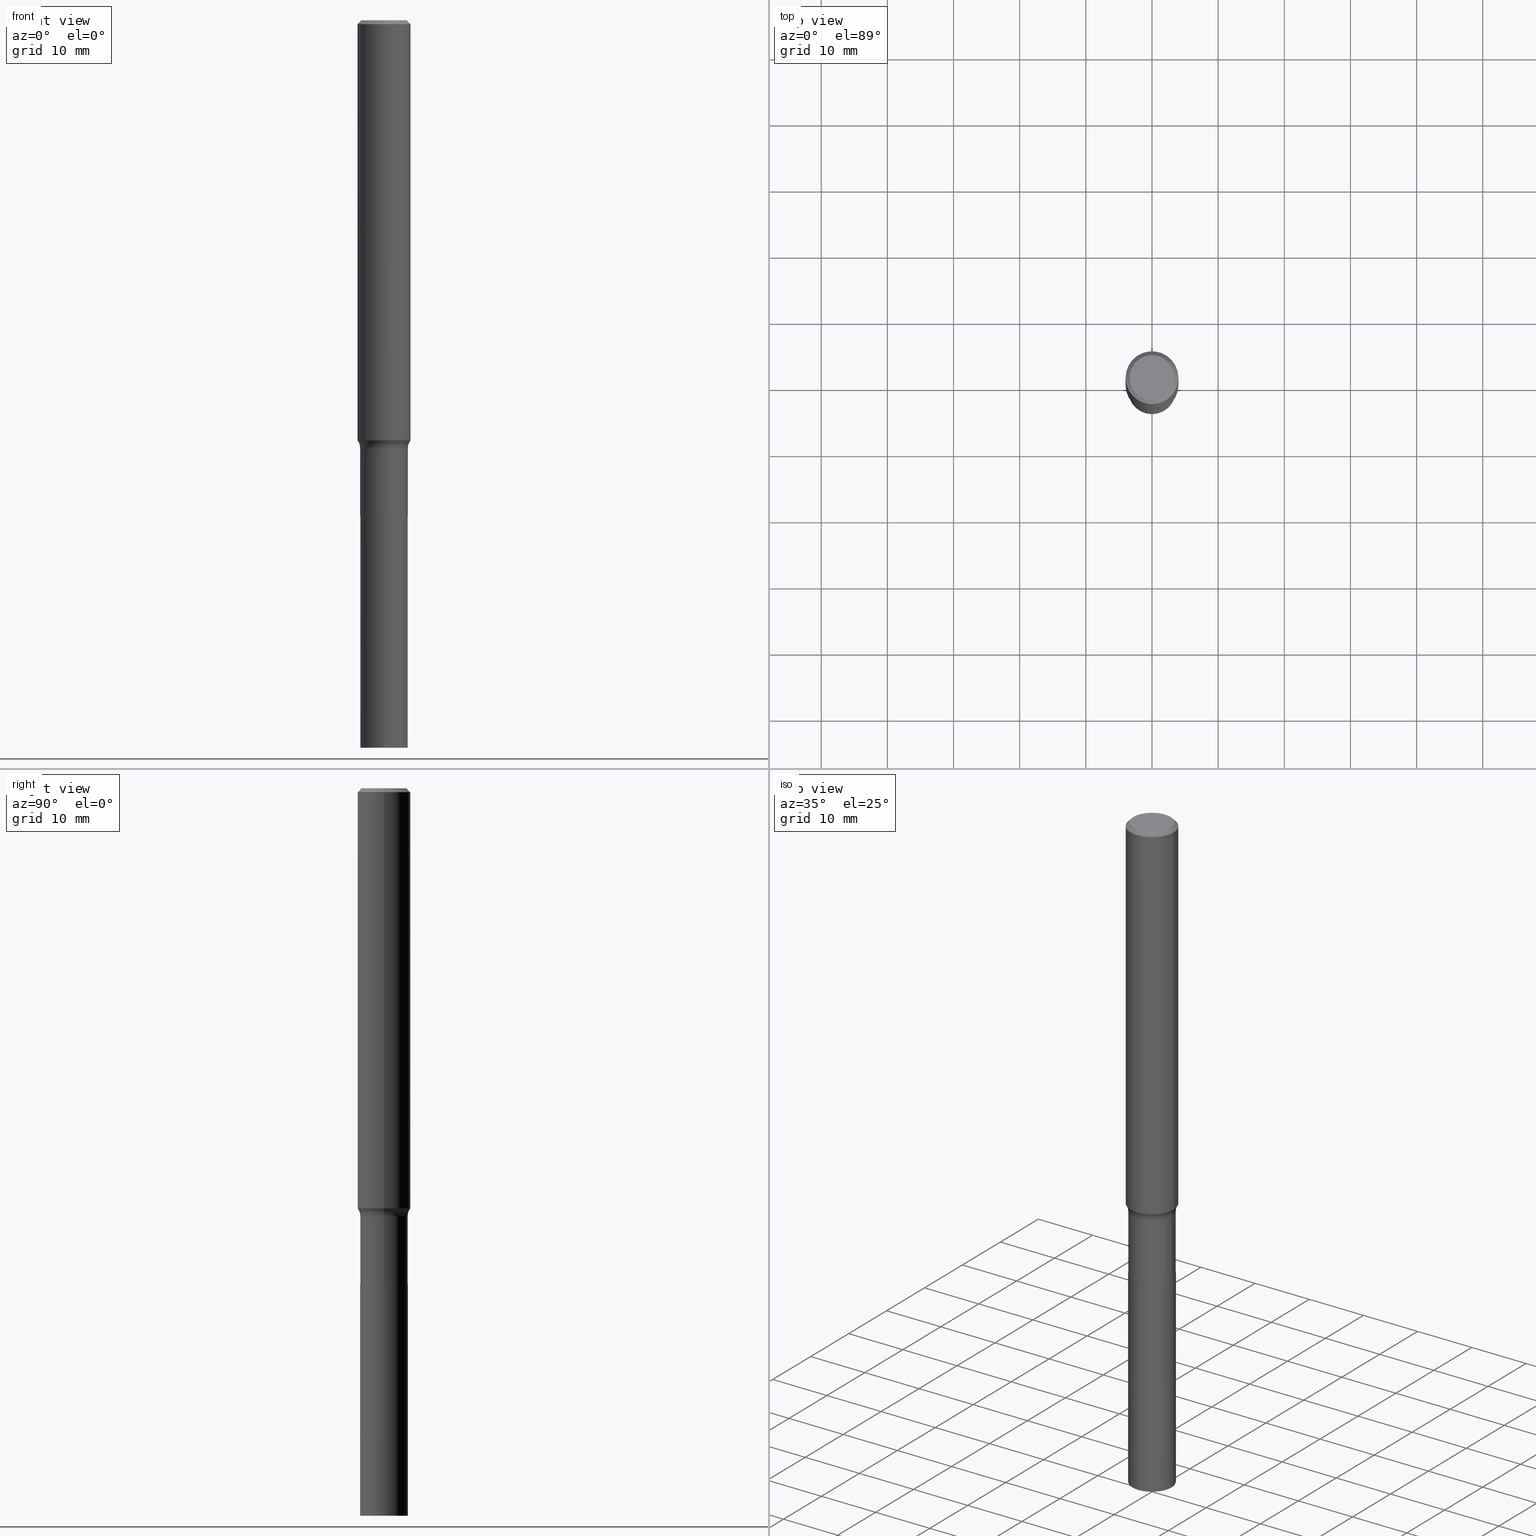
[diagram: canonical four-view strip — front | top / right | iso, engineering-drawing reading convention]
A machine part, canonical four-view strip (front | top / right | iso — engineering-drawing reading convention). The complete STEP part file that produces these views, byte-faithful:
ISO-10303-21;
HEADER;
FILE_DESCRIPTION (( 'STEP AP203' ),
    '1' );
FILE_NAME ('67859.STEP',
    '2024-04-19T16:44:54',
    ( '' ),
    ( '' ),
    'SwSTEP 2.0',
    'SolidWorks 2023',
    '' );
FILE_SCHEMA (( 'CONFIG_CONTROL_DESIGN' ));
ENDSEC;

DATA;
#1 = AXIS2_PLACEMENT_3D ( 'NONE', #135, #280, #419 ) ;
#2 = PERSON_AND_ORGANIZATION ( #166, #201 ) ;
#3 = ORIENTED_EDGE ( 'NONE', *, *, #265, .F. ) ;
#4 = LOCAL_TIME ( 12, 44, 54.00000000000000000, #412 ) ;
#5 = PERSON_AND_ORGANIZATION ( #166, #201 ) ;
#6 = PRODUCT_RELATED_PRODUCT_CATEGORY ( 'detail', '', ( #184 ) ) ;
#7 = CARTESIAN_POINT ( 'NONE',  ( 0.1338749999999999940, -1.040731925365424925E-15, 4.101342130351390035E-18 ) ) ;
#8 = LINE ( 'NONE', #165, #253 ) ;
#9 = DIRECTION ( 'NONE',  ( -2.445468806185136597E-29, 3.491481338843145583E-15, 1.000000000000000000 ) ) ;
#10 = CIRCLE ( 'NONE', #432, 0.1338749999999999940 ) ;
#11 = LOCAL_TIME ( 12, 44, 54.00000000000000000, #37 ) ;
#12 = VERTEX_POINT ( 'NONE', #385 ) ;
#13 = CARTESIAN_POINT ( 'NONE',  ( -5.014852121625163022E-47, 7.159879756154476955E-33, 2.050671065172241055E-18 ) ) ;
#14 = DIRECTION ( 'NONE',  ( -2.438088387897960049E-29, 3.491481338843145188E-15, 1.000000000000000000 ) ) ;
#15 = PERSON_AND_ORGANIZATION_ROLE ( 'classification_officer' ) ;
#16 = CYLINDRICAL_SURFACE ( 'NONE', #170, 0.1417499999999999871 ) ;
#17 = DIRECTION ( 'NONE',  ( -2.445418050477662264E-29, 3.491554023905084110E-15, 1.000000000000000000 ) ) ;
#18 = AXIS2_PLACEMENT_3D ( 'NONE', #127, #9, #21 ) ;
#19 = VECTOR ( 'NONE', #223, 39.37007874015748143 ) ;
#20 = ORIENTED_EDGE ( 'NONE', *, *, #185, .F. ) ;
#21 = DIRECTION ( 'NONE',  ( 1.000000000000000000, -6.982962677686267499E-15, 4.876176775795935232E-29 ) ) ;
#22 = ORIENTED_EDGE ( 'NONE', *, *, #65, .T. ) ;
#23 = AXIS2_PLACEMENT_3D ( 'NONE', #105, #397, #67 ) ;
#24 = DIRECTION ( 'NONE',  ( -2.445468806185136597E-29, 3.491481338843145583E-15, 1.000000000000000000 ) ) ;
#25 = ORIENTED_EDGE ( 'NONE', *, *, #276, .F. ) ;
#26 = DIRECTION ( 'NONE',  ( 2.438088387897960049E-29, -3.491481338843145188E-15, -1.000000000000000000 ) ) ;
#27 = LINE ( 'NONE', #322, #218 ) ;
#28 = CARTESIAN_POINT ( 'NONE',  ( 5.777420054612421104E-31, -8.248624663016984002E-17, -0.02362500000000014588 ) ) ;
#29 = VERTEX_POINT ( 'NONE', #311 ) ;
#30 = DIRECTION ( 'NONE',  ( 1.000000000000000000, -6.982962677686272233E-15, 0.000000000000000000 ) ) ;
#31 = CIRCLE ( 'NONE', #446, 0.1412499999999999867 ) ;
#32 = VERTEX_POINT ( 'NONE', #414 ) ;
#33 = EDGE_CURVE ( 'NONE', #156, #220, #56, .T. ) ;
#34 = VERTEX_POINT ( 'NONE', #82 ) ;
#35 = VERTEX_POINT ( 'NONE', #274 ) ;
#36 = MECHANICAL_CONTEXT ( 'NONE', #270, 'mechanical' ) ;
#37 = COORDINATED_UNIVERSAL_TIME_OFFSET ( 5, 0, .BEHIND. ) ;
#38 = CYLINDRICAL_SURFACE ( 'NONE', #152, 0.1575000000000001676 ) ;
#39 = ORIENTED_EDGE ( 'NONE', *, *, #86, .T. ) ;
#40 = PERSON_AND_ORGANIZATION ( #166, #201 ) ;
#41 = APPROVAL_DATE_TIME ( #122, #283 ) ;
#42 = CIRCLE ( 'NONE', #307, 0.1575000000000003064 ) ;
#43 = DIRECTION ( 'NONE',  ( -2.445418050477662264E-29, 3.491554023905084110E-15, 1.000000000000000000 ) ) ;
#44 = ADVANCED_FACE ( 'NONE', ( #157 ), #418, .T. ) ;
#45 = ORIENTED_EDGE ( 'NONE', *, *, #203, .F. ) ;
#46 = APPROVAL_ROLE ( '' ) ;
#47 = FACE_OUTER_BOUND ( 'NONE', #158, .T. ) ;
#48 = DIRECTION ( 'NONE',  ( 0.7071067811864509833, -2.468850131081245741E-15, 0.7071067811866440511 ) ) ;
#49 = DIRECTION ( 'NONE',  ( 1.000000000000000000, -6.982962677686272233E-15, 0.000000000000000000 ) ) ;
#50 = PERSON_AND_ORGANIZATION_ROLE ( 'creator' ) ;
#51 = CIRCLE ( 'NONE', #441, 0.07999999999999986289 ) ;
#52 = CC_DESIGN_DATE_AND_TIME_ASSIGNMENT ( #379, #341, ( #154 ) ) ;
#53 = CARTESIAN_POINT ( 'NONE',  ( 7.220735744022853640E-29, -1.030929694920215659E-14, -2.952700000000000546 ) ) ;
#54 = FACE_OUTER_BOUND ( 'NONE', #337, .T. ) ;
#55 = DIRECTION ( 'NONE',  ( -6.982962677686265133E-15, -1.000000000000000000, 3.854459250319948630E-15 ) ) ;
#56 = LINE ( 'NONE', #162, #106 ) ;
#57 = FACE_OUTER_BOUND ( 'NONE', #263, .T. ) ;
#58 = DIRECTION ( 'NONE',  ( -6.982962677686265133E-15, -1.000000000000000000, 3.854459250319948630E-15 ) ) ;
#59 = CIRCLE ( 'NONE', #285, 0.1412499999999999867 ) ;
#60 = CC_DESIGN_APPROVAL ( #283, ( #377 ) ) ;
#61 = CC_DESIGN_APPROVAL ( #94, ( #154 ) ) ;
#62 = ADVANCED_FACE ( 'NONE', ( #303 ), #326, .F. ) ;
#63 = CARTESIAN_POINT ( 'NONE',  ( 0.1417499999999999871, -9.898349595620284167E-16, 6.911980579690738790E-30 ) ) ;
#64 = CYLINDRICAL_SURFACE ( 'NONE', #320, 0.1417499999999999871 ) ;
#65 = EDGE_CURVE ( 'NONE', #443, #156, #235, .T. ) ;
#66 = AXIS2_PLACEMENT_3D ( 'NONE', #294, #365, #198 ) ;
#67 = DIRECTION ( 'NONE',  ( 1.000000000000000000, -6.982962677686263555E-15, 0.000000000000000000 ) ) ;
#68 = ORIENTED_EDGE ( 'NONE', *, *, #177, .F. ) ;
#69 = APPROVAL_ROLE ( '' ) ;
#70 = DIRECTION ( 'NONE',  ( -1.000000000000000000, 6.982962677686265922E-15, -4.876176775795935793E-29 ) ) ;
#71 = ORIENTED_EDGE ( 'NONE', *, *, #388, .F. ) ;
#72 = CIRCLE ( 'NONE', #344, 0.1417499999999999871 ) ;
#73 = ORIENTED_EDGE ( 'NONE', *, *, #172, .T. ) ;
#74 = TOROIDAL_SURFACE ( 'NONE', #66, 0.2217499999999999749, 0.07999999999999986289 ) ;
#75 = APPROVAL_PERSON_ORGANIZATION ( #2, #94, #192 ) ;
#76 = ORIENTED_EDGE ( 'NONE', *, *, #213, .F. ) ;
#77 = CARTESIAN_POINT ( 'NONE',  ( 7.220735744022853640E-29, -1.030929694920215659E-14, -2.952700000000000546 ) ) ;
#78 = VERTEX_POINT ( 'NONE', #284 ) ;
#79 = ORIENTED_EDGE ( 'NONE', *, *, #65, .F. ) ;
#80 = CIRCLE ( 'NONE', #164, 0.1417499999999999594 ) ;
#81 = CARTESIAN_POINT ( 'NONE',  ( 7.219513009619761960E-29, -1.030755120853273430E-14, -2.952200000000000379 ) ) ;
#82 = CARTESIAN_POINT ( 'NONE',  ( 0.1412499999999999867, -1.129564042742534161E-14, -2.952700000000000546 ) ) ;
#83 = DIRECTION ( 'NONE',  ( -2.445468806185136597E-29, 3.491481338843145583E-15, 1.000000000000000000 ) ) ;
#84 = CYLINDRICAL_SURFACE ( 'NONE', #18, 0.1575000000000001676 ) ;
#85 = DIRECTION ( 'NONE',  ( -1.000000000000000000, 6.982962677686265922E-15, 0.000000000000000000 ) ) ;
#86 = EDGE_CURVE ( 'NONE', #35, #32, #450, .T. ) ;
#87 = AXIS2_PLACEMENT_3D ( 'NONE', #200, #282, #286 ) ;
#88 = VECTOR ( 'NONE', #128, 39.37007874015748143 ) ;
#89 = FACE_OUTER_BOUND ( 'NONE', #429, .T. ) ;
#90 = DIRECTION ( 'NONE',  ( 1.000000000000000000, -6.982962677686271444E-15, 0.000000000000000000 ) ) ;
#91 = CARTESIAN_POINT ( 'NONE',  ( 1.059052181758106979E-28, -1.512065839414336189E-14, -4.330699999999999328 ) ) ;
#92 = MANIFOLD_SOLID_BREP ( 'Body-Move/Copy2[2]', #259 ) ;
#93 = DIRECTION ( 'NONE',  ( 7.105427357601001859E-15, 1.000000000000000000, -3.491481338843145583E-15 ) ) ;
#94 = APPROVAL ( #130, 'UNSPECIFIED' ) ;
#95 = AXIS2_PLACEMENT_3D ( 'NONE', #387, #312, #49 ) ;
#96 = MANIFOLD_SOLID_BREP ( 'Body-Move/Copy2[1]', #425 ) ;
#97 = DIRECTION ( 'NONE',  ( -2.445468806185136597E-29, 3.491481338843145583E-15, 1.000000000000000000 ) ) ;
#98 = PLANE ( 'NONE',  #271 ) ;
#99 = CARTESIAN_POINT ( 'NONE',  ( -1.002970424325032604E-46, 1.431975951230895391E-32, 4.101342130344482109E-18 ) ) ;
#100 = CARTESIAN_POINT ( 'NONE',  ( -1.002970424325032604E-46, 1.431975951230895391E-32, 4.101342130344482109E-18 ) ) ;
#101 = DIRECTION ( 'NONE',  ( 1.000000000000000000, -6.982962677686261189E-15, 0.000000000000000000 ) ) ;
#102 = ORIENTED_EDGE ( 'NONE', *, *, #104, .T. ) ;
#103 = DIRECTION ( 'NONE',  ( -2.445468806185136597E-29, 3.491481338843145583E-15, 1.000000000000000000 ) ) ;
#104 = EDGE_CURVE ( 'NONE', #126, #78, #250, .T. ) ;
#105 = CARTESIAN_POINT ( 'NONE',  ( 7.220735744022853640E-29, -1.030929694920215659E-14, -2.952700000000000546 ) ) ;
#106 = VECTOR ( 'NONE', #131, 39.37007874015748143 ) ;
#107 = DIRECTION ( 'NONE',  ( 1.000000000000000000, -6.982962677686263555E-15, 0.000000000000000000 ) ) ;
#108 = CIRCLE ( 'NONE', #136, 0.1417499999999999871 ) ;
#109 = EDGE_LOOP ( 'NONE', ( #364, #331 ) ) ;
#110 = ORIENTED_EDGE ( 'NONE', *, *, #86, .F. ) ;
#111 = CARTESIAN_POINT ( 'NONE',  ( -9.898349595619558415E-16, -0.1417500000000102844, -2.952700000000000102 ) ) ;
#112 = ORIENTED_EDGE ( 'NONE', *, *, #290, .F. ) ;
#113 = EDGE_LOOP ( 'NONE', ( #151, #252, #407, #110 ) ) ;
#114 = EDGE_LOOP ( 'NONE', ( #187, #435, #411, #258 ) ) ;
#115 =( NAMED_UNIT ( * ) SI_UNIT ( $, .STERADIAN. ) SOLID_ANGLE_UNIT ( ) );
#116 = AXIS2_PLACEMENT_3D ( 'NONE', #275, #83, #380 ) ;
#117 = LOCAL_TIME ( 12, 44, 54.00000000000000000, #278 ) ;
#118 = PRODUCT_DEFINITION_FORMATION_WITH_SPECIFIED_SOURCE ( 'ANY', '', #184, .NOT_KNOWN. ) ;
#119 = CALENDAR_DATE ( 2024, 19, 4 ) ;
#120 = EDGE_LOOP ( 'NONE', ( #112, #183, #291, #297 ) ) ;
#121 = LINE ( 'NONE', #196, #88 ) ;
#122 = DATE_AND_TIME ( #319, #117 ) ;
#123 = DIRECTION ( 'NONE',  ( -6.982962677686265133E-15, -1.000000000000000000, 3.854459250319948630E-15 ) ) ;
#124 = EDGE_CURVE ( 'NONE', #409, #12, #295, .T. ) ;
#125 = ADVANCED_BREP_SHAPE_REPRESENTATION ( '67859', ( #96, #92, #236 ), #353 ) ;
#126 = VERTEX_POINT ( 'NONE', #391 ) ;
#127 = CARTESIAN_POINT ( 'NONE',  ( 0.000000000000000000, 0.000000000000000000, 0.000000000000000000 ) ) ;
#128 = DIRECTION ( 'NONE',  ( -2.445468806185136877E-29, 3.491481338843145188E-15, 1.000000000000000000 ) ) ;
#129 = AXIS2_PLACEMENT_3D ( 'NONE', #350, #17, #55 ) ;
#130 = APPROVAL_STATUS ( 'not_yet_approved' ) ;
#131 = DIRECTION ( 'NONE',  ( -2.445468806185136877E-29, 3.491481338843145188E-15, 1.000000000000000000 ) ) ;
#132 = EDGE_CURVE ( 'NONE', #240, #460, #10, .T. ) ;
#133 = APPROVAL_DATE_TIME ( #233, #180 ) ;
#134 = ORIENTED_EDGE ( 'NONE', *, *, #447, .F. ) ;
#135 = CARTESIAN_POINT ( 'NONE',  ( 7.219513009619761960E-29, -1.030755120853273430E-14, -2.952200000000000379 ) ) ;
#136 = AXIS2_PLACEMENT_3D ( 'NONE', #398, #304, #142 ) ;
#137 = ADVANCED_FACE ( 'NONE', ( #457 ), #428, .F. ) ;
#138 = LOCAL_TIME ( 12, 44, 54.00000000000000000, #155 ) ;
#139 = CARTESIAN_POINT ( 'NONE',  ( 3.390322198116035646E-28, 1.826445511659319559E-14, -4.330700000000000216 ) ) ;
#140 = CC_DESIGN_DATE_AND_TIME_ASSIGNMENT ( #313, #445, ( #377 ) ) ;
#141 = CARTESIAN_POINT ( 'NONE',  ( 7.220735744022853640E-29, -1.030929694920215659E-14, -2.952700000000000546 ) ) ;
#142 = DIRECTION ( 'NONE',  ( -6.982962677686265133E-15, -1.000000000000000000, 3.854459250319948630E-15 ) ) ;
#143 = FACE_OUTER_BOUND ( 'NONE', #113, .T. ) ;
#144 = EDGE_LOOP ( 'NONE', ( #430, #204, #217, #148 ) ) ;
#145 = FACE_OUTER_BOUND ( 'NONE', #402, .T. ) ;
#146 = ORIENTED_EDGE ( 'NONE', *, *, #462, .F. ) ;
#147 = DIRECTION ( 'NONE',  ( -2.445468806185136597E-29, 3.491481338843145583E-15, 1.000000000000000000 ) ) ;
#148 = ORIENTED_EDGE ( 'NONE', *, *, #269, .T. ) ;
#149 = ORIENTED_EDGE ( 'NONE', *, *, #265, .T. ) ;
#150 = FACE_OUTER_BOUND ( 'NONE', #114, .T. ) ;
#151 = ORIENTED_EDGE ( 'NONE', *, *, #462, .T. ) ;
#152 = AXIS2_PLACEMENT_3D ( 'NONE', #186, #195, #416 ) ;
#153 = ADVANCED_FACE ( 'NONE', ( #57 ), #84, .T. ) ;
#154 = SECURITY_CLASSIFICATION ( '', '', #222 ) ;
#155 = COORDINATED_UNIVERSAL_TIME_OFFSET ( 5, 0, .BEHIND. ) ;
#156 = VERTEX_POINT ( 'NONE', #324 ) ;
#157 = FACE_OUTER_BOUND ( 'NONE', #144, .T. ) ;
#158 = EDGE_LOOP ( 'NONE', ( #20, #334 ) ) ;
#159 = APPROVAL_DATE_TIME ( #382, #94 ) ;
#160 = PERSON_AND_ORGANIZATION_ROLE ( 'design_supplier' ) ;
#161 = CC_DESIGN_PERSON_AND_ORGANIZATION_ASSIGNMENT ( #190, #160, ( #118 ) ) ;
#162 = CARTESIAN_POINT ( 'NONE',  ( -0.1575000000000001676, 1.119104808822158984E-15, -7.747322767151485392E-30 ) ) ;
#163 = DIMENSIONAL_EXPONENTS ( 1.000000000000000000, 0.000000000000000000, 0.000000000000000000, 0.000000000000000000, 0.000000000000000000, 0.000000000000000000, 0.000000000000000000 ) ;
#164 = AXIS2_PLACEMENT_3D ( 'NONE', #448, #288, #101 ) ;
#165 = CARTESIAN_POINT ( 'NONE',  ( -0.1417499999999999871, 1.007194327939941922E-15, -6.972590490436329146E-30 ) ) ;
#166 = PERSON ( 'UNSPECIFIED', 'UNSPECIFIED', 'UNSPECIFIED', ('UNSPECIFIED'), ('UNSPECIFIED'), ('UNSPECIFIED') ) ;
#167 = CARTESIAN_POINT ( 'NONE',  ( -0.1338749999999999940, 9.760872517903331886E-16, 4.101342130337800673E-18 ) ) ;
#168 = DIRECTION ( 'NONE',  ( -2.445468806185136597E-29, 3.491481338843145583E-15, 1.000000000000000000 ) ) ;
#169 = CIRCLE ( 'NONE', #369, 0.1417500000000000149 ) ;
#170 = AXIS2_PLACEMENT_3D ( 'NONE', #420, #168, #439 ) ;
#171 = DIRECTION ( 'NONE',  ( 0.7071067811865451302, -7.319954787623248157E-15, -0.7071067811865499042 ) ) ;
#172 = EDGE_CURVE ( 'NONE', #32, #289, #80, .T. ) ;
#173 = DIRECTION ( 'NONE',  ( 1.000000000000000000, -6.982962677686263555E-15, 0.000000000000000000 ) ) ;
#174 = CIRCLE ( 'NONE', #1, 0.1417500000000000149 ) ;
#175 = ORIENTED_EDGE ( 'NONE', *, *, #177, .T. ) ;
#176 = DIRECTION ( 'NONE',  ( -2.445468806185136597E-29, 3.491481338843145583E-15, 1.000000000000000000 ) ) ;
#177 = EDGE_CURVE ( 'NONE', #443, #32, #352, .T. ) ;
#178 = LINE ( 'NONE', #111, #281 ) ;
#179 = ORIENTED_EDGE ( 'NONE', *, *, #203, .T. ) ;
#180 = APPROVAL ( #417, 'UNSPECIFIED' ) ;
#181 = CARTESIAN_POINT ( 'NONE',  ( -0.1417500000000000426, -8.595077650146476144E-15, -2.952200000000000379 ) ) ;
#182 = CIRCLE ( 'NONE', #404, 0.1417499999999999594 ) ;
#183 = ORIENTED_EDGE ( 'NONE', *, *, #310, .T. ) ;
#184 = PRODUCT ( '67859', '67859', '', ( #36 ) ) ;
#185 = EDGE_CURVE ( 'NONE', #34, #29, #59, .T. ) ;
#186 = CARTESIAN_POINT ( 'NONE',  ( 0.000000000000000000, 0.000000000000000000, 0.000000000000000000 ) ) ;
#187 = ORIENTED_EDGE ( 'NONE', *, *, #132, .F. ) ;
#188 = AXIS2_PLACEMENT_3D ( 'NONE', #267, #231, #85 ) ;
#189 = AXIS2_PLACEMENT_3D ( 'NONE', #28, #333, #299 ) ;
#190 = PERSON_AND_ORGANIZATION ( #166, #201 ) ;
#191 = ORIENTED_EDGE ( 'NONE', *, *, #276, .T. ) ;
#192 = APPROVAL_ROLE ( '' ) ;
#193 = PERSON_AND_ORGANIZATION_ROLE ( 'creator' ) ;
#194 = AXIS2_PLACEMENT_3D ( 'NONE', #100, #97, #246 ) ;
#195 = DIRECTION ( 'NONE',  ( -2.445468806185136597E-29, 3.491481338843145583E-15, 1.000000000000000000 ) ) ;
#196 = CARTESIAN_POINT ( 'NONE',  ( 0.1575000000000001676, -1.099816621735588269E-15, 7.679978421878606441E-30 ) ) ;
#197 = DIRECTION ( 'NONE',  ( 1.000000000000000000, -6.982962677686265922E-15, 4.876176775795935793E-29 ) ) ;
#198 = DIRECTION ( 'NONE',  ( 1.000000000000000000, -6.982962677686263555E-15, 4.883557194083111780E-29 ) ) ;
#199 = CARTESIAN_POINT ( 'NONE',  ( 1.059052181758106979E-28, -1.512065839414336189E-14, -4.330699999999999328 ) ) ;
#200 = CARTESIAN_POINT ( 'NONE',  ( 7.220735744022853640E-29, -1.030929694920215659E-14, -2.952700000000000546 ) ) ;
#201 = ORGANIZATION ( 'UNSPECIFIED', 'UNSPECIFIED', '' ) ;
#202 = DIRECTION ( 'NONE',  ( -2.445468806185136597E-29, 3.491481338843145583E-15, 1.000000000000000000 ) ) ;
#203 = EDGE_CURVE ( 'NONE', #78, #126, #72, .T. ) ;
#204 = ORIENTED_EDGE ( 'NONE', *, *, #431, .F. ) ;
#205 = DIRECTION ( 'NONE',  ( 6.982962677686265922E-15, 1.000000000000000000, -3.491554023905084110E-15 ) ) ;
#206 = CARTESIAN_POINT ( 'NONE',  ( 7.220735744022853640E-29, -1.030929694920215659E-14, -2.952700000000000546 ) ) ;
#207 = CARTESIAN_POINT ( 'NONE',  ( 0.000000000000000000, 0.000000000000000000, 0.000000000000000000 ) ) ;
#208 = CONICAL_SURFACE ( 'NONE', #23, 0.1412499999999999867, 0.7853981633973118326 ) ;
#209 = PERSON_AND_ORGANIZATION ( #166, #201 ) ;
#210 = DIRECTION ( 'NONE',  ( -0.7071067811864509833, 7.493145998870005484E-15, 0.7071067811866440511 ) ) ;
#211 = ADVANCED_FACE ( 'NONE', ( #89 ), #239, .T. ) ;
#212 = EDGE_LOOP ( 'NONE', ( #329, #149, #191, #68 ) ) ;
#213 = EDGE_CURVE ( 'NONE', #12, #409, #108, .T. ) ;
#214 = VERTEX_POINT ( 'NONE', #181 ) ;
#215 = CYLINDRICAL_SURFACE ( 'NONE', #316, 0.1417499999999999871 ) ;
#216 = ORIENTED_EDGE ( 'NONE', *, *, #408, .T. ) ;
#217 = ORIENTED_EDGE ( 'NONE', *, *, #351, .T. ) ;
#218 = VECTOR ( 'NONE', #171, 39.37007874015748143 ) ;
#219 = ORIENTED_EDGE ( 'NONE', *, *, #33, .T. ) ;
#220 = VERTEX_POINT ( 'NONE', #466 ) ;
#221 = ADVANCED_FACE ( 'NONE', ( #150 ), #434, .T. ) ;
#222 = SECURITY_CLASSIFICATION_LEVEL ( 'unclassified' ) ;
#223 = DIRECTION ( 'NONE',  ( -2.445418050477662264E-29, 3.491554023905084110E-15, 1.000000000000000000 ) ) ;
#224 = ORIENTED_EDGE ( 'NONE', *, *, #238, .F. ) ;
#225 = LINE ( 'NONE', #339, #426 ) ;
#226 = COORDINATED_UNIVERSAL_TIME_OFFSET ( 5, 0, .BEHIND. ) ;
#227 = AXIS2_PLACEMENT_3D ( 'NONE', #348, #14, #197 ) ;
#228 = CC_DESIGN_SECURITY_CLASSIFICATION ( #154, ( #118 ) ) ;
#229 = CALENDAR_DATE ( 2024, 19, 4 ) ;
#230 = CARTESIAN_POINT ( 'NONE',  ( 1.007194327940013906E-15, 0.1417499999999896620, -2.952700000000000990 ) ) ;
#231 = DIRECTION ( 'NONE',  ( 2.445468806185136597E-29, -3.491481338843145583E-15, -1.000000000000000000 ) ) ;
#232 = CARTESIAN_POINT ( 'NONE',  ( 0.1412499999999999867, -1.129564042742534161E-14, -2.952700000000000546 ) ) ;
#233 = DATE_AND_TIME ( #229, #11 ) ;
#234 = PLANE ( 'NONE',  #227 ) ;
#235 = CIRCLE ( 'NONE', #95, 0.1575000000000003064 ) ;
#236 = AXIS2_PLACEMENT_3D ( 'NONE', #298, #453, #455 ) ;
#237 = PERSON_AND_ORGANIZATION ( #166, #201 ) ;
#238 = EDGE_CURVE ( 'NONE', #78, #409, #178, .T. ) ;
#239 = CYLINDRICAL_SURFACE ( 'NONE', #129, 0.1417499999999999871 ) ;
#240 = VERTEX_POINT ( 'NONE', #7 ) ;
#241 = DIRECTION ( 'NONE',  ( -2.445418050477662264E-29, 3.491554023905084110E-15, 1.000000000000000000 ) ) ;
#242 = ADVANCED_FACE ( 'NONE', ( #461 ), #74, .F. ) ;
#243 = APPROVAL_PERSON_ORGANIZATION ( #272, #180, #46 ) ;
#244 =( LENGTH_UNIT ( ) NAMED_UNIT ( * ) SI_UNIT ( $, .METRE. ) );
#245 = DIRECTION ( 'NONE',  ( 2.445418050477661984E-29, -3.491554023905084110E-15, -1.000000000000000000 ) ) ;
#246 = DIRECTION ( 'NONE',  ( 1.000000000000000000, -6.982962677686266711E-15, 4.876170806578254279E-29 ) ) ;
#247 = DIRECTION ( 'NONE',  ( -6.982962677686266711E-15, -1.000000000000000000, 3.491481338843145583E-15 ) ) ;
#248 = DIRECTION ( 'NONE',  ( 1.000000000000000000, -6.982962677686265922E-15, 0.000000000000000000 ) ) ;
#249 = DIRECTION ( 'NONE',  ( -2.445468806185136597E-29, 3.491481338843145583E-15, 1.000000000000000000 ) ) ;
#250 = CIRCLE ( 'NONE', #367, 0.1417499999999999871 ) ;
#251 = DIRECTION ( 'NONE',  ( 1.000000000000000000, -6.982962677686263555E-15, 0.000000000000000000 ) ) ;
#252 = ORIENTED_EDGE ( 'NONE', *, *, #368, .T. ) ;
#253 = VECTOR ( 'NONE', #400, 39.37007874015748143 ) ;
#254 = ADVANCED_FACE ( 'NONE', ( #317 ), #396, .T. ) ;
#255 = DIRECTION ( 'NONE',  ( -6.982962677686265922E-15, -1.000000000000000000, 3.491554023905084110E-15 ) ) ;
#256 = DESIGN_CONTEXT ( 'detailed design', #309, 'design' ) ;
#257 = CC_DESIGN_PERSON_AND_ORGANIZATION_ASSIGNMENT ( #406, #193, ( #118 ) ) ;
#258 = ORIENTED_EDGE ( 'NONE', *, *, #351, .F. ) ;
#259 = CLOSED_SHELL ( 'NONE', ( #440, #221, #415, #62, #436, #335, #242, #153, #44, #421, #359, #254 ) ) ;
#260 = VECTOR ( 'NONE', #48, 39.37007874015748143 ) ;
#261 = EDGE_LOOP ( 'NONE', ( #179, #216, #305, #224 ) ) ;
#262 = SHAPE_DEFINITION_REPRESENTATION ( #264, #125 ) ;
#263 = EDGE_LOOP ( 'NONE', ( #374, #468, #449, #438 ) ) ;
#264 = PRODUCT_DEFINITION_SHAPE ( 'NONE', 'NONE',  #377 ) ;
#265 = EDGE_CURVE ( 'NONE', #156, #289, #51, .T. ) ;
#266 = DIRECTION ( 'NONE',  ( -0.7071067811865451302, 2.468850131082231817E-15, -0.7071067811865499042 ) ) ;
#267 = CARTESIAN_POINT ( 'NONE',  ( 5.777420054612421104E-31, -8.248624663016984002E-17, -0.02362500000000014588 ) ) ;
#268 = AXIS2_PLACEMENT_3D ( 'NONE', #422, #247, #90 ) ;
#269 = EDGE_CURVE ( 'NONE', #220, #405, #389, .T. ) ;
#270 = APPLICATION_CONTEXT ( 'configuration controlled 3d designs of mechanical parts and assemblies' ) ;
#271 = AXIS2_PLACEMENT_3D ( 'NONE', #139, #371, #255 ) ;
#272 = PERSON_AND_ORGANIZATION ( #166, #201 ) ;
#273 = CARTESIAN_POINT ( 'NONE',  ( 0.1575000000000000011, -1.182302868365756679E-15, -0.02362500000000014588 ) ) ;
#274 = CARTESIAN_POINT ( 'NONE',  ( 0.1417500000000000149, -1.129738616809476390E-14, -2.952200000000000379 ) ) ;
#275 = CARTESIAN_POINT ( 'NONE',  ( 6.231543611920964461E-29, -8.896992747640102620E-15, -2.548200000000000021 ) ) ;
#276 = EDGE_CURVE ( 'NONE', #289, #32, #182, .T. ) ;
#277 = DIRECTION ( 'NONE',  ( -2.445418050477662264E-29, 3.491554023905084110E-15, 1.000000000000000000 ) ) ;
#278 = COORDINATED_UNIVERSAL_TIME_OFFSET ( 5, 0, .BEHIND. ) ;
#279 = DIRECTION ( 'NONE',  ( -1.000000000000000000, 7.105427357600999492E-15, 0.000000000000000000 ) ) ;
#280 = DIRECTION ( 'NONE',  ( -2.445468806185136597E-29, 3.491481338843145583E-15, 1.000000000000000000 ) ) ;
#281 = VECTOR ( 'NONE', #43, 39.37007874015748143 ) ;
#282 = DIRECTION ( 'NONE',  ( -2.445418050477662264E-29, 3.491554023905084110E-15, 1.000000000000000000 ) ) ;
#283 = APPROVAL ( #325, 'UNSPECIFIED' ) ;
#284 = CARTESIAN_POINT ( 'NONE',  ( -9.898349595619221177E-16, -0.1417500000000151139, -4.330699999999998440 ) ) ;
#285 = AXIS2_PLACEMENT_3D ( 'NONE', #206, #384, #173 ) ;
#286 = DIRECTION ( 'NONE',  ( -6.982962677686265133E-15, -1.000000000000000000, 3.854459250319948630E-15 ) ) ;
#287 = CIRCLE ( 'NONE', #194, 0.1338749999999999940 ) ;
#288 = DIRECTION ( 'NONE',  ( -2.445468806185136597E-29, 3.491481338843145583E-15, 1.000000000000000000 ) ) ;
#289 = VERTEX_POINT ( 'NONE', #366 ) ;
#290 = EDGE_CURVE ( 'NONE', #29, #214, #395, .T. ) ;
#291 = ORIENTED_EDGE ( 'NONE', *, *, #447, .T. ) ;
#292 = EDGE_LOOP ( 'NONE', ( #22, #219, #363, #71 ) ) ;
#293 =( NAMED_UNIT ( * ) PLANE_ANGLE_UNIT ( ) SI_UNIT ( $, .RADIAN. ) );
#294 = CARTESIAN_POINT ( 'NONE',  ( 6.231543611920964461E-29, -8.896992747640102620E-15, -2.548200000000000021 ) ) ;
#295 = CIRCLE ( 'NONE', #87, 0.1417499999999999871 ) ;
#296 = AXIS2_PLACEMENT_3D ( 'NONE', #13, #26, #70 ) ;
#297 = ORIENTED_EDGE ( 'NONE', *, *, #327, .F. ) ;
#298 = CARTESIAN_POINT ( 'NONE',  ( 0.000000000000000000, 0.000000000000000000, 0.000000000000000000 ) ) ;
#299 = DIRECTION ( 'NONE',  ( -1.000000000000000000, 6.982962677686265922E-15, 0.000000000000000000 ) ) ;
#300 = EDGE_CURVE ( 'NONE', #405, #220, #452, .T. ) ;
#301 = ORIENTED_EDGE ( 'NONE', *, *, #132, .T. ) ;
#302 = ORIENTED_EDGE ( 'NONE', *, *, #408, .F. ) ;
#303 = FACE_OUTER_BOUND ( 'NONE', #212, .T. ) ;
#304 = DIRECTION ( 'NONE',  ( -2.445418050477662264E-29, 3.491554023905084110E-15, 1.000000000000000000 ) ) ;
#305 = ORIENTED_EDGE ( 'NONE', *, *, #124, .F. ) ;
#306 = FACE_OUTER_BOUND ( 'NONE', #261, .T. ) ;
#307 = AXIS2_PLACEMENT_3D ( 'NONE', #410, #372, #30 ) ;
#308 = DIRECTION ( 'NONE',  ( -2.445418050477662264E-29, 3.491554023905084110E-15, 1.000000000000000000 ) ) ;
#309 = APPLICATION_CONTEXT ( 'configuration controlled 3d designs of mechanical parts and assemblies' ) ;
#310 = EDGE_CURVE ( 'NONE', #29, #34, #31, .T. ) ;
#311 = CARTESIAN_POINT ( 'NONE',  ( -0.1412499999999999867, -9.303006107766902397E-15, -2.952700000000000546 ) ) ;
#312 = DIRECTION ( 'NONE',  ( -2.445468806185136597E-29, 3.491481338843145583E-15, 1.000000000000000000 ) ) ;
#313 = DATE_AND_TIME ( #347, #332 ) ;
#314 = CARTESIAN_POINT ( 'NONE',  ( -9.898349595619558415E-16, -0.1417500000000102844, -2.952700000000000102 ) ) ;
#315 = AXIS2_PLACEMENT_3D ( 'NONE', #141, #245, #205 ) ;
#316 = AXIS2_PLACEMENT_3D ( 'NONE', #77, #308, #123 ) ;
#317 = FACE_OUTER_BOUND ( 'NONE', #120, .T. ) ;
#318 = ADVANCED_FACE ( 'NONE', ( #306 ), #215, .T. ) ;
#319 = CALENDAR_DATE ( 2024, 19, 4 ) ;
#320 = AXIS2_PLACEMENT_3D ( 'NONE', #207, #176, #459 ) ;
#321 = DIRECTION ( 'NONE',  ( -6.982962677686265133E-15, -1.000000000000000000, 3.854459250319948630E-15 ) ) ;
#322 = CARTESIAN_POINT ( 'NONE',  ( 0.1575000000000000011, -1.163014681279185964E-15, -0.02362500000000014588 ) ) ;
#323 = LENGTH_MEASURE_WITH_UNIT ( LENGTH_MEASURE( 0.02539999999999999897 ), #244 );
#324 = CARTESIAN_POINT ( 'NONE',  ( -0.1575000000000002232, -7.611467020109086398E-15, -2.500535154463693122 ) ) ;
#325 = APPROVAL_STATUS ( 'not_yet_approved' ) ;
#326 = TOROIDAL_SURFACE ( 'NONE', #116, 0.2217499999999999749, 0.07999999999999986289 ) ;
#327 = EDGE_CURVE ( 'NONE', #214, #35, #169, .T. ) ;
#328 = DIRECTION ( 'NONE',  ( 1.000000000000000000, -6.982962677686265922E-15, 0.000000000000000000 ) ) ;
#329 = ORIENTED_EDGE ( 'NONE', *, *, #355, .F. ) ;
#330 = APPLICATION_PROTOCOL_DEFINITION ( 'international standard', 'config_control_design', 1994, #309 ) ;
#331 = ORIENTED_EDGE ( 'NONE', *, *, #213, .T. ) ;
#332 = LOCAL_TIME ( 12, 44, 54.00000000000000000, #226 ) ;
#333 = DIRECTION ( 'NONE',  ( 2.445468806185136597E-29, -3.491481338843145583E-15, -1.000000000000000000 ) ) ;
#334 = ORIENTED_EDGE ( 'NONE', *, *, #310, .F. ) ;
#335 = ADVANCED_FACE ( 'NONE', ( #54 ), #16, .T. ) ;
#336 = EDGE_LOOP ( 'NONE', ( #45, #370 ) ) ;
#337 = EDGE_LOOP ( 'NONE', ( #442, #393, #39, #25 ) ) ;
#338 = VECTOR ( 'NONE', #210, 39.37007874015748143 ) ;
#339 = CARTESIAN_POINT ( 'NONE',  ( -0.1575000000000000011, 1.017330375105417098E-15, -0.02362500000000014588 ) ) ;
#340 = FACE_OUTER_BOUND ( 'NONE', #463, .T. ) ;
#341 = DATE_TIME_ROLE ( 'classification_date' ) ;
#342 = CALENDAR_DATE ( 2024, 19, 4 ) ;
#343 = CC_DESIGN_PERSON_AND_ORGANIZATION_ASSIGNMENT ( #40, #50, ( #377 ) ) ;
#344 = AXIS2_PLACEMENT_3D ( 'NONE', #199, #277, #321 ) ;
#345 = AXIS2_PLACEMENT_3D ( 'NONE', #464, #249, #248 ) ;
#346 = CC_DESIGN_APPROVAL ( #180, ( #118 ) ) ;
#347 = CALENDAR_DATE ( 2024, 19, 4 ) ;
#348 = CARTESIAN_POINT ( 'NONE',  ( 7.220735744022853640E-29, -1.030929694920215659E-14, -2.952700000000000546 ) ) ;
#349 = PERSON_AND_ORGANIZATION_ROLE ( 'design_owner' ) ;
#350 = CARTESIAN_POINT ( 'NONE',  ( 7.220735744022853640E-29, -1.030929694920215659E-14, -2.952700000000000546 ) ) ;
#351 = EDGE_CURVE ( 'NONE', #460, #220, #225, .T. ) ;
#352 = CIRCLE ( 'NONE', #268, 0.07999999999999986289 ) ;
#353 =( GEOMETRIC_REPRESENTATION_CONTEXT ( 3 ) GLOBAL_UNCERTAINTY_ASSIGNED_CONTEXT ( ( #373 ) ) GLOBAL_UNIT_ASSIGNED_CONTEXT ( ( #456, #293, #115 ) ) REPRESENTATION_CONTEXT ( 'NONE', 'WORKASPACE' ) );
#354 = LINE ( 'NONE', #232, #260 ) ;
#355 = EDGE_CURVE ( 'NONE', #156, #443, #42, .T. ) ;
#356 = DIRECTION ( 'NONE',  ( 1.000000000000000000, -6.982962677686266711E-15, 4.876170806578254279E-29 ) ) ;
#357 = DIRECTION ( 'NONE',  ( -2.445468806185136597E-29, 3.491481338843145583E-15, 1.000000000000000000 ) ) ;
#358 = ORIENTED_EDGE ( 'NONE', *, *, #185, .T. ) ;
#359 = ADVANCED_FACE ( 'NONE', ( #47 ), #234, .F. ) ;
#360 = CARTESIAN_POINT ( 'NONE',  ( -0.1412499999999999867, -9.305655334941014387E-15, -2.952700000000000546 ) ) ;
#361 = AXIS2_PLACEMENT_3D ( 'NONE', #362, #103, #328 ) ;
#362 = CARTESIAN_POINT ( 'NONE',  ( 5.777420054612421104E-31, -8.248624663016984002E-17, -0.02362500000000014588 ) ) ;
#363 = ORIENTED_EDGE ( 'NONE', *, *, #300, .F. ) ;
#364 = ORIENTED_EDGE ( 'NONE', *, *, #124, .T. ) ;
#365 = DIRECTION ( 'NONE',  ( -2.445468806185136597E-29, 3.491481338843145583E-15, 1.000000000000000000 ) ) ;
#366 = CARTESIAN_POINT ( 'NONE',  ( -0.1417499999999999594, -8.595077650146477722E-15, -2.548200000000000021 ) ) ;
#367 = AXIS2_PLACEMENT_3D ( 'NONE', #91, #241, #58 ) ;
#368 = EDGE_CURVE ( 'NONE', #214, #289, #8, .T. ) ;
#369 = AXIS2_PLACEMENT_3D ( 'NONE', #81, #357, #454 ) ;
#370 = ORIENTED_EDGE ( 'NONE', *, *, #104, .F. ) ;
#371 = DIRECTION ( 'NONE',  ( -2.445418050477661984E-29, 3.491554023905084110E-15, 1.000000000000000000 ) ) ;
#372 = DIRECTION ( 'NONE',  ( -2.445468806185136597E-29, 3.491481338843145583E-15, 1.000000000000000000 ) ) ;
#373 = UNCERTAINTY_MEASURE_WITH_UNIT (LENGTH_MEASURE( 1.000000000000000082E-05 ), #456, 'distance_accuracy_value', 'NONE');
#374 = ORIENTED_EDGE ( 'NONE', *, *, #33, .F. ) ;
#375 = APPLICATION_PROTOCOL_DEFINITION ( 'international standard', 'config_control_design', 1994, #270 ) ;
#376 = FACE_OUTER_BOUND ( 'NONE', #292, .T. ) ;
#377 = PRODUCT_DEFINITION ( 'UNKNOWN', '', #118, #256 ) ;
#378 = PLANE ( 'NONE',  #296 ) ;
#379 = DATE_AND_TIME ( #119, #4 ) ;
#380 = DIRECTION ( 'NONE',  ( 1.000000000000000000, -6.982962677686263555E-15, 4.883557194083111780E-29 ) ) ;
#381 = EDGE_CURVE ( 'NONE', #240, #405, #27, .T. ) ;
#382 = DATE_AND_TIME ( #342, #138 ) ;
#383 = CARTESIAN_POINT ( 'NONE',  ( 0.1575000000000002232, -9.830388450666835426E-15, -2.500535154463693122 ) ) ;
#384 = DIRECTION ( 'NONE',  ( -2.445468806185136597E-29, 3.491481338843145583E-15, 1.000000000000000000 ) ) ;
#385 = CARTESIAN_POINT ( 'NONE',  ( 1.007194327940047827E-15, 0.1417499999999896620, -2.952700000000000990 ) ) ;
#386 = ADVANCED_FACE ( 'NONE', ( #392 ), #98, .F. ) ;
#387 = CARTESIAN_POINT ( 'NONE',  ( 6.114980719010292811E-29, -8.730571828931245579E-15, -2.500535154463693122 ) ) ;
#388 = EDGE_CURVE ( 'NONE', #443, #405, #121, .T. ) ;
#389 = CIRCLE ( 'NONE', #345, 0.1575000000000000011 ) ;
#390 = ORIENTED_EDGE ( 'NONE', *, *, #431, .T. ) ;
#391 = CARTESIAN_POINT ( 'NONE',  ( 1.007194327940030866E-15, 0.1417499999999848603, -4.330700000000000216 ) ) ;
#392 = FACE_OUTER_BOUND ( 'NONE', #336, .T. ) ;
#393 = ORIENTED_EDGE ( 'NONE', *, *, #327, .T. ) ;
#394 = DIRECTION ( 'NONE',  ( 1.000000000000000000, -6.982962677686261189E-15, 0.000000000000000000 ) ) ;
#395 = LINE ( 'NONE', #360, #338 ) ;
#396 = CONICAL_SURFACE ( 'NONE', #433, 0.1412499999999999867, 0.7853981633973118326 ) ;
#397 = DIRECTION ( 'NONE',  ( -2.445468806185136597E-29, 3.491481338843145583E-15, 1.000000000000000000 ) ) ;
#398 = CARTESIAN_POINT ( 'NONE',  ( 7.220735744022853640E-29, -1.030929694920215659E-14, -2.952700000000000546 ) ) ;
#399 = CARTESIAN_POINT ( 'NONE',  ( -0.2217499999999999749, -7.321364231092081228E-15, -2.548200000000000021 ) ) ;
#400 = DIRECTION ( 'NONE',  ( -2.445468806185136877E-29, 3.491481338843145188E-15, 1.000000000000000000 ) ) ;
#401 = ORIENTED_EDGE ( 'NONE', *, *, #290, .T. ) ;
#402 = EDGE_LOOP ( 'NONE', ( #358, #401, #146, #134 ) ) ;
#403 = ORIENTED_EDGE ( 'NONE', *, *, #238, .T. ) ;
#404 = AXIS2_PLACEMENT_3D ( 'NONE', #437, #424, #394 ) ;
#405 = VERTEX_POINT ( 'NONE', #273 ) ;
#406 = PERSON_AND_ORGANIZATION ( #166, #201 ) ;
#407 = ORIENTED_EDGE ( 'NONE', *, *, #172, .F. ) ;
#408 = EDGE_CURVE ( 'NONE', #126, #12, #413, .T. ) ;
#409 = VERTEX_POINT ( 'NONE', #314 ) ;
#410 = CARTESIAN_POINT ( 'NONE',  ( 6.114980719010292811E-29, -8.730571828931245579E-15, -2.500535154463693122 ) ) ;
#411 = ORIENTED_EDGE ( 'NONE', *, *, #300, .T. ) ;
#412 = COORDINATED_UNIVERSAL_TIME_OFFSET ( 5, 0, .BEHIND. ) ;
#413 = LINE ( 'NONE', #230, #19 ) ;
#414 = CARTESIAN_POINT ( 'NONE',  ( 0.1417499999999999594, -9.886827707202130642E-15, -2.548200000000000021 ) ) ;
#415 = ADVANCED_FACE ( 'NONE', ( #376 ), #38, .T. ) ;
#416 = DIRECTION ( 'NONE',  ( 1.000000000000000000, -6.982962677686267499E-15, 4.876176775795935232E-29 ) ) ;
#417 = APPROVAL_STATUS ( 'not_yet_approved' ) ;
#418 = CONICAL_SURFACE ( 'NONE', #188, 0.1575000000000000011, 0.7853981633974449483 ) ;
#419 = DIRECTION ( 'NONE',  ( 1.000000000000000000, -6.982962677686272233E-15, 0.000000000000000000 ) ) ;
#420 = CARTESIAN_POINT ( 'NONE',  ( 0.000000000000000000, 0.000000000000000000, 0.000000000000000000 ) ) ;
#421 = ADVANCED_FACE ( 'NONE', ( #340 ), #378, .F. ) ;
#422 = CARTESIAN_POINT ( 'NONE',  ( 0.2217499999999999749, -1.044546472141703229E-14, -2.548200000000000021 ) ) ;
#423 = DIRECTION ( 'NONE',  ( -2.445468806185136877E-29, 3.491481338843145188E-15, 1.000000000000000000 ) ) ;
#424 = DIRECTION ( 'NONE',  ( -2.445468806185136597E-29, 3.491481338843145583E-15, 1.000000000000000000 ) ) ;
#425 = CLOSED_SHELL ( 'NONE', ( #318, #386, #211, #137 ) ) ;
#426 = VECTOR ( 'NONE', #266, 39.37007874015748143 ) ;
#427 = CC_DESIGN_PERSON_AND_ORGANIZATION_ASSIGNMENT ( #237, #349, ( #184 ) ) ;
#428 = PLANE ( 'NONE',  #315 ) ;
#429 = EDGE_LOOP ( 'NONE', ( #302, #102, #403, #76 ) ) ;
#430 = ORIENTED_EDGE ( 'NONE', *, *, #381, .F. ) ;
#431 = EDGE_CURVE ( 'NONE', #460, #240, #287, .T. ) ;
#432 = AXIS2_PLACEMENT_3D ( 'NONE', #99, #202, #356 ) ;
#433 = AXIS2_PLACEMENT_3D ( 'NONE', #53, #24, #251 ) ;
#434 = CONICAL_SURFACE ( 'NONE', #189, 0.1575000000000000011, 0.7853981633974449483 ) ;
#435 = ORIENTED_EDGE ( 'NONE', *, *, #381, .T. ) ;
#436 = ADVANCED_FACE ( 'NONE', ( #143 ), #64, .T. ) ;
#437 = CARTESIAN_POINT ( 'NONE',  ( 6.231543611920964461E-29, -8.896992747640102620E-15, -2.548200000000000021 ) ) ;
#438 = ORIENTED_EDGE ( 'NONE', *, *, #269, .F. ) ;
#439 = DIRECTION ( 'NONE',  ( 1.000000000000000000, -6.982962677686268288E-15, 4.876176775795936353E-29 ) ) ;
#440 = ADVANCED_FACE ( 'NONE', ( #145 ), #208, .T. ) ;
#441 = AXIS2_PLACEMENT_3D ( 'NONE', #399, #93, #279 ) ;
#442 = ORIENTED_EDGE ( 'NONE', *, *, #368, .F. ) ;
#443 = VERTEX_POINT ( 'NONE', #383 ) ;
#444 = EDGE_LOOP ( 'NONE', ( #3, #79, #175, #73 ) ) ;
#445 = DATE_TIME_ROLE ( 'creation_date' ) ;
#446 = AXIS2_PLACEMENT_3D ( 'NONE', #458, #147, #107 ) ;
#447 = EDGE_CURVE ( 'NONE', #34, #35, #354, .T. ) ;
#448 = CARTESIAN_POINT ( 'NONE',  ( 6.231543611920964461E-29, -8.896992747640102620E-15, -2.548200000000000021 ) ) ;
#449 = ORIENTED_EDGE ( 'NONE', *, *, #388, .T. ) ;
#450 = LINE ( 'NONE', #63, #451 ) ;
#451 = VECTOR ( 'NONE', #423, 39.37007874015748143 ) ;
#452 = CIRCLE ( 'NONE', #361, 0.1575000000000000011 ) ;
#453 = DIRECTION ( 'NONE',  ( 0.000000000000000000, 0.000000000000000000, 1.000000000000000000 ) ) ;
#454 = DIRECTION ( 'NONE',  ( 1.000000000000000000, -6.982962677686272233E-15, 0.000000000000000000 ) ) ;
#455 = DIRECTION ( 'NONE',  ( 1.000000000000000000, 0.000000000000000000, 0.000000000000000000 ) ) ;
#456 =( CONVERSION_BASED_UNIT ( 'INCH', #323 ) LENGTH_UNIT ( ) NAMED_UNIT ( #163 ) );
#457 = FACE_OUTER_BOUND ( 'NONE', #109, .T. ) ;
#458 = CARTESIAN_POINT ( 'NONE',  ( 7.220735744022853640E-29, -1.030929694920215659E-14, -2.952700000000000546 ) ) ;
#459 = DIRECTION ( 'NONE',  ( 1.000000000000000000, -6.982962677686268288E-15, 4.876176775795936353E-29 ) ) ;
#460 = VERTEX_POINT ( 'NONE', #167 ) ;
#461 = FACE_OUTER_BOUND ( 'NONE', #444, .T. ) ;
#462 = EDGE_CURVE ( 'NONE', #35, #214, #174, .T. ) ;
#463 = EDGE_LOOP ( 'NONE', ( #390, #301 ) ) ;
#464 = CARTESIAN_POINT ( 'NONE',  ( 5.777420054612421104E-31, -8.248624663016984002E-17, -0.02362500000000014588 ) ) ;
#465 = APPROVAL_PERSON_ORGANIZATION ( #209, #283, #69 ) ;
#466 = CARTESIAN_POINT ( 'NONE',  ( -0.1575000000000000011, -3.287424228958547123E-15, -0.02362500000000014588 ) ) ;
#467 = CC_DESIGN_PERSON_AND_ORGANIZATION_ASSIGNMENT ( #5, #15, ( #154 ) ) ;
#468 = ORIENTED_EDGE ( 'NONE', *, *, #355, .T. ) ;
ENDSEC;
END-ISO-10303-21;
